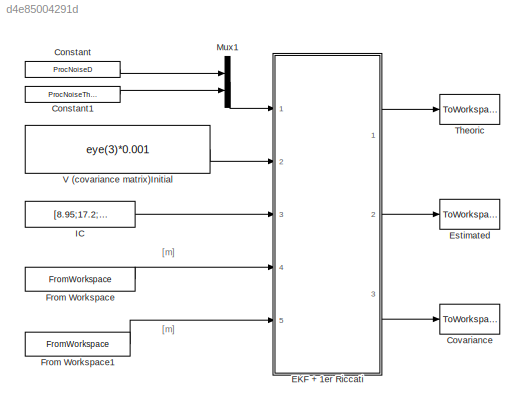
MODEL slx_d4e85004291d
KIND model
CONFIG AbsTol = auto
CONFIG EnableMultiTasking = on
CONFIG FixedStep = 0.02
CONFIG InitFcn = load('Encoder_Data.mat')\nrandinit\nProcNoiseD=0.019^2; % is a variance. Stdmax<0.02\nProcNoiseTheta=0.003^2 % is a variance. Stdmax <0.0035\nTs=0.02\n
CONFIG MaxStep = auto
CONFIG MinStep = auto
CONFIG RelTol = 1e-3
CONFIG SampleTimeConstraint = Unconstrained
CONFIG SolverName = FixedStepDiscrete
CONFIG StartTime = 0.0
CONFIG StopFcn = I = imread('Enviroment.png');\nx = [0 35.9];\ny=[23.31 0];\nimage(I,'XData',x,'YData',y);\naxis xy;\nhold on\nplot (Pose_t.Data(:,1),Pose_t.Data(:,2),'b');\nplot (Pose_est.Data(:,1),Pose_est.Data(:,2),'r');\nlen=length(Pose_t.Data);\nfor i=1:round(len/15):len\n%    plot_ellipse(Pk.signals.values(1:2,1:2,i),[xEst.signals.values(i,1), xEst.signals.values(i,2)],'g');\n    plot_ellipse(Pk.signals.values(1:2,1:2,...<+299ch>
CONFIG StopTime = 60
BLOCK [Constant] Constant
  NameLocation = top
  SampleTime = Ts
  Value = ProcNoiseD
BLOCK [Constant] Constant1
  SampleTime = Ts
  Value = ProcNoiseTheta
BLOCK [ToWorkspace] Covariance
  MaxDataPoints = inf
  NameLocation = top
  Ports = [1]
  SampleTime = -1
  SaveFormat = Structure With Time
  VariableName = Pk
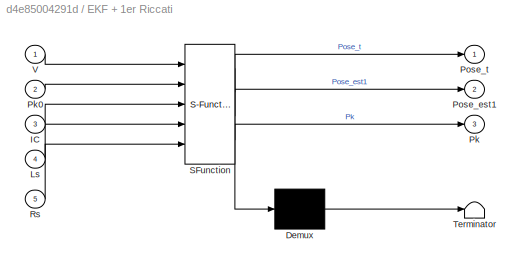
BLOCK [SubSystem] EKF + 1er Riccati
  ErrorFcn = Stateflow.Translate.translate
  PermitHierarchicalResolution = ExplicitOnly
  Ports = [5, 3]
  RequestExecContextInheritance = off
  SFBlockType = MATLAB Function
  TreatAsAtomicUnit = on
BLOCK [Demux] EKF + 1er Riccati/ Demux 
  Outputs = 1
  Ports = [1, 1]
BLOCK [S-Function] EKF + 1er Riccati/ SFunction 
  EnableBusSupport = on
  FunctionName = sf_sfun
  PortCounts = [5 4]
  Ports = [5, 4]
  SFcnIsStateOwnerBlock = off
  SFunctionDeploymentMode = off
  Tag = Stateflow S-Function 2
BLOCK [Terminator] EKF + 1er Riccati/ Terminator 
BLOCK [Inport] EKF + 1er Riccati/IC
  Port = 3
BLOCK [Inport] EKF + 1er Riccati/Ls
  Port = 4
BLOCK [Outport] EKF + 1er Riccati/Pk
  Port = 3
  VectorParamsAs1DForOutWhenUnconnected = off
BLOCK [Inport] EKF + 1er Riccati/Pk0
  Port = 2
BLOCK [Outport] EKF + 1er Riccati/Pose_est1
  Port = 2
  VectorParamsAs1DForOutWhenUnconnected = off
BLOCK [Outport] EKF + 1er Riccati/Pose_t
  VectorParamsAs1DForOutWhenUnconnected = off
BLOCK [Inport] EKF + 1er Riccati/Rs
  Port = 5
BLOCK [Inport] EKF + 1er Riccati/V
BLOCK [ToWorkspace] Estimated
  MaxDataPoints = inf
  NameLocation = top
  Ports = [1]
  SampleTime = -1
  SaveFormat = Timeseries
  VariableName = Pose_est
BLOCK [FromWorkspace] From Workspace
  NameLocation = top
  SampleTime = Ts
  VariableName = L_acu
BLOCK [FromWorkspace] From Workspace1
  VariableName = R_acu
BLOCK [Constant] IC
  SampleTime = Ts
  Value = [8.95;17.2;3*pi/2]
BLOCK [Mux] Mux1
  DisplayOption = bar
  Inputs = 2
  Ports = [2, 1]
BLOCK [ToWorkspace] Theoric
  MaxDataPoints = inf
  NameLocation = top
  Ports = [1]
  SampleTime = -1
  SaveFormat = Timeseries
  VariableName = Pose_t
BLOCK [Constant] V (covariance matrix)Initial
  SampleTime = -1
  Value = eye(3)*0.001
  VectorParams1D = off
ANNOTATION (root): [m]
LINE Constant1:1 -> Mux1:2
LINE Constant:1 -> Mux1:1
LINE EKF + 1er Riccati:1 -> Theoric:1
LINE EKF + 1er Riccati:2 -> Estimated:1
LINE EKF + 1er Riccati:3 -> Covariance:1
LINE From Workspace1:1 -> EKF + 1er Riccati:5
LINE From Workspace:1 -> EKF + 1er Riccati:4
LINE IC:1 -> EKF + 1er Riccati:3
LINE Mux1:1 -> EKF + 1er Riccati:1
LINE V (covariance matrix)Initial:1 -> EKF + 1er Riccati:2
CHART EKF + 1er Riccati states=1 transitions=1
  STATE_LABEL 'eML_blk_kernel()'
  STATE_LABEL 'SCRIPT:\nfunction [Pose_t,Pose_est1,Pk] = fcn(V,Pk0,IC,Ls,Rs) \n         % V Variance of the noise\n         % Pko Initial covariance matrix \n         % IC->Initial Condition [xo,yo,th0]\n         % Rs and Ls are the cumulative displacements of wheels [m]\n         \npersistent L_ant R_ant...\n           x_w y_w suma_theta...%  internal variable to be mantain its values\n           x_w_est y_w_est suma_th...<+2395ch>'
CHART  states=0 transitions=0
